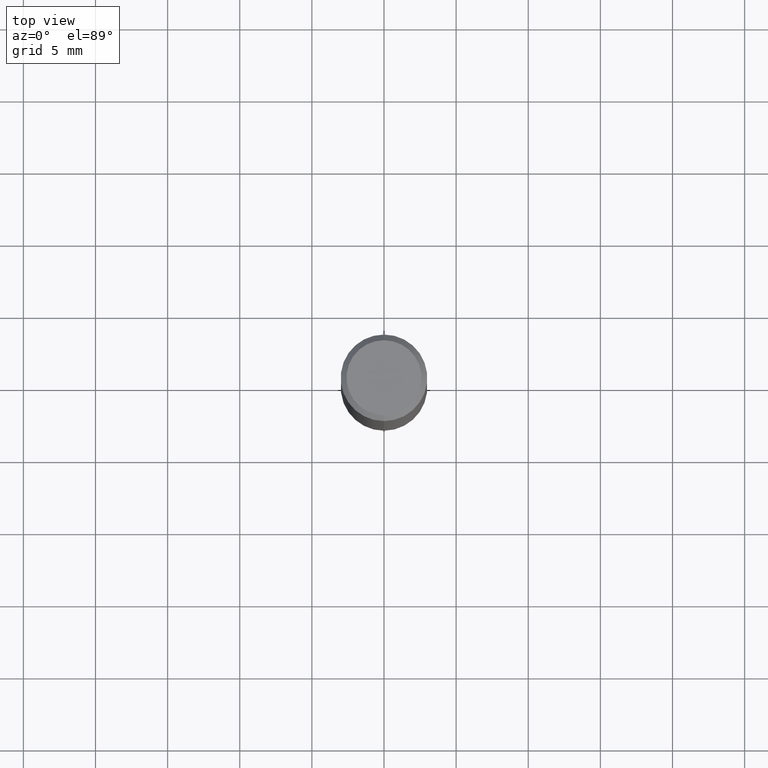
[diagram: clean part render]
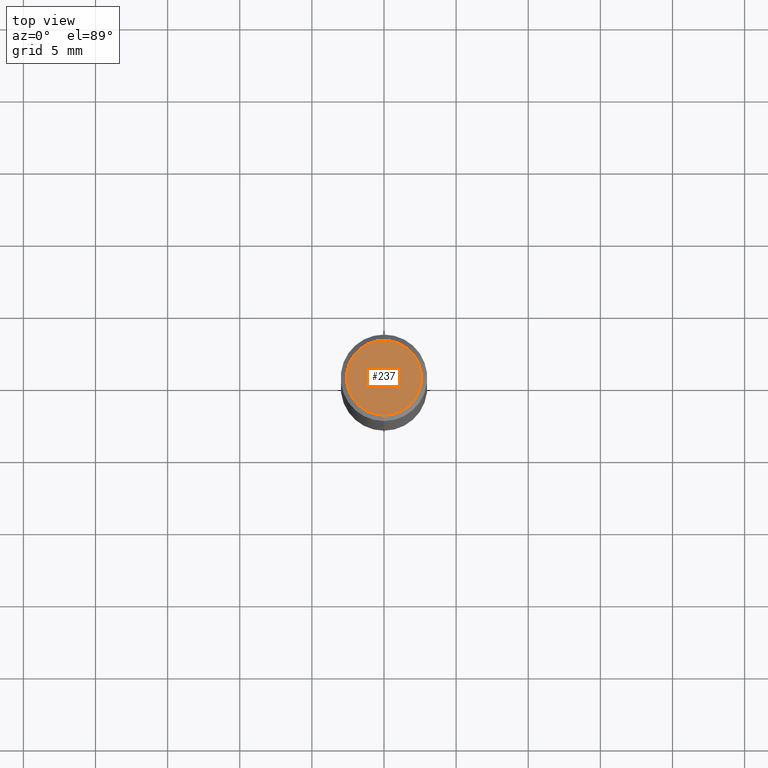
[diagram: same view with one face highlighted and labeled with its STEP entity id]
A machine part, top view. The second image highlights one B-rep face of the part: STEP entity #237.
In plain terms, the highlighted planar face has unit normal (-0, 0, 1).
Its self-contained STEP definition (entity closure, byte-faithful):
#123=EDGE_CURVE('',#219,#205,#297,.T.);
#205=VERTEX_POINT('',#387);
#219=VERTEX_POINT('',#404);
#221=EDGE_CURVE('',#205,#219,#406,.T.);
#237=ADVANCED_FACE('',(#425),#426,.T.);
#297=CIRCLE('',#487,2.6);
#387=CARTESIAN_POINT('',(0.0,2.6,0.0));
#404=CARTESIAN_POINT('',(3.18397651993818E-016,-2.6,0.0));
#406=CIRCLE('',#627,2.6);
#425=FACE_OUTER_BOUND('',#647,.T.);
#426=PLANE('',#648);
#487=AXIS2_PLACEMENT_3D('',#714,#715,#716);
#627=AXIS2_PLACEMENT_3D('',#836,#837,#838);
#647=EDGE_LOOP('',(#863,#864));
#648=AXIS2_PLACEMENT_3D('',#865,#866,#867);
#714=CARTESIAN_POINT('',(0.0,0.0,0.0));
#715=DIRECTION('',(0.0,0.0,-1.0));
#716=DIRECTION('',(0.0,1.0,0.0));
#836=CARTESIAN_POINT('',(0.0,0.0,0.0));
#837=DIRECTION('',(0.0,0.0,-1.0));
#838=DIRECTION('',(0.0,1.0,0.0));
#863=ORIENTED_EDGE('',*,*,#221,.F.);
#864=ORIENTED_EDGE('',*,*,#123,.F.);
#865=CARTESIAN_POINT('',(0.0,1.3,0.0));
#866=DIRECTION('',(-0.0,0.0,1.0));
#867=DIRECTION('',(0.0,-1.0,0.0));